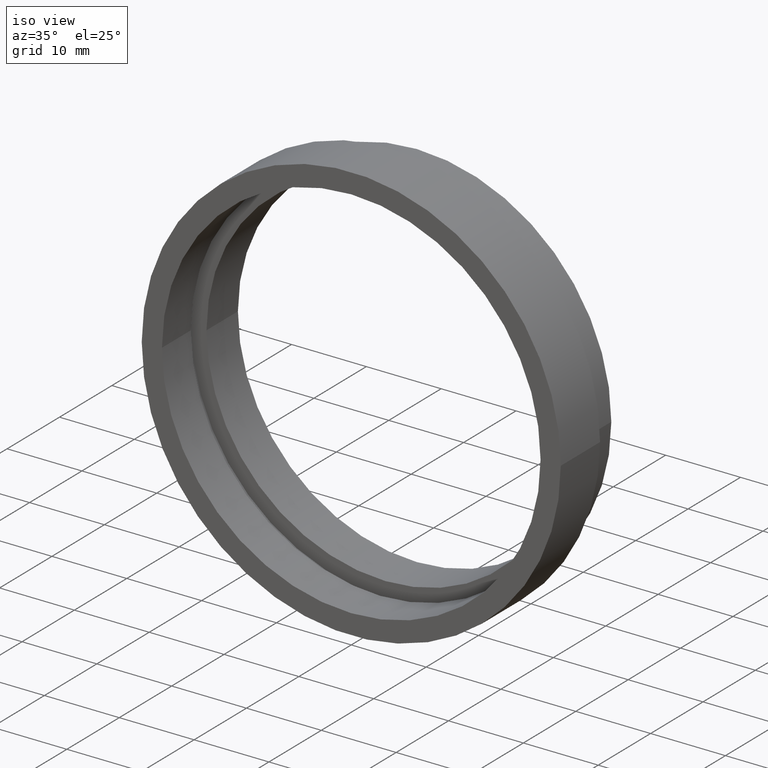
[diagram: clean part render]
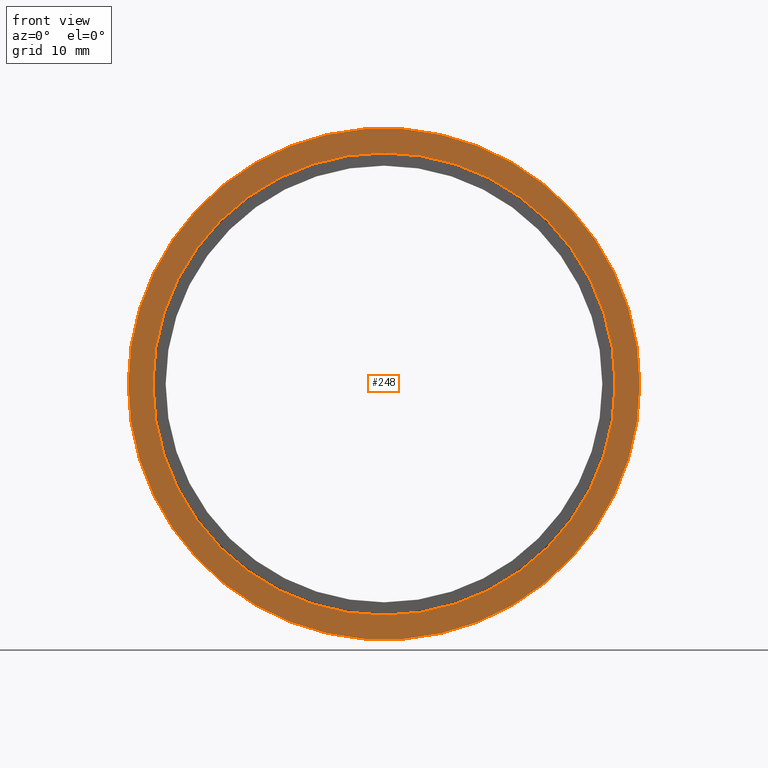
[diagram: tour spotlight — one face highlighted and labeled with its STEP entity id]
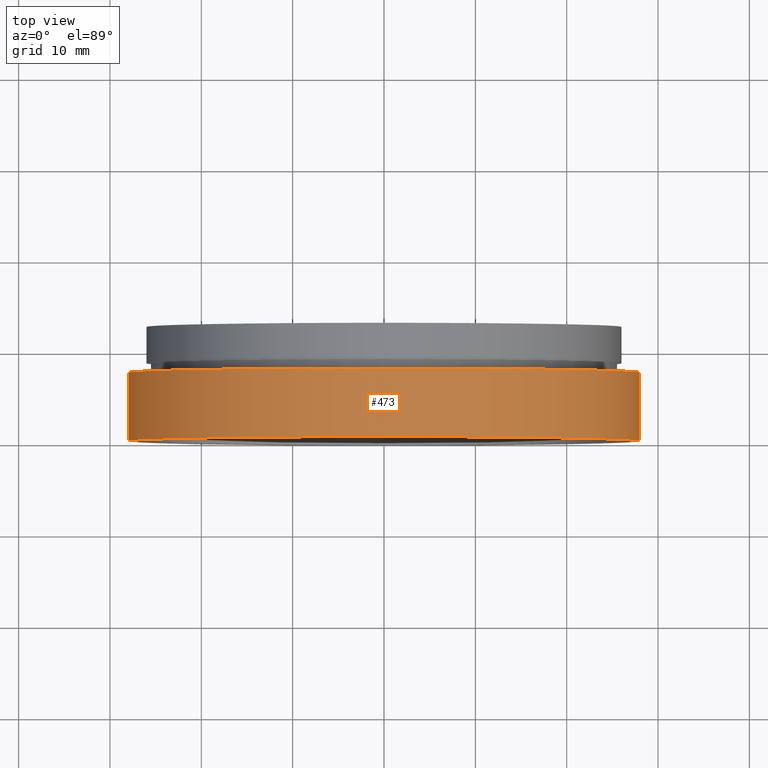
[diagram: tour spotlight — one face highlighted and labeled with its STEP entity id]
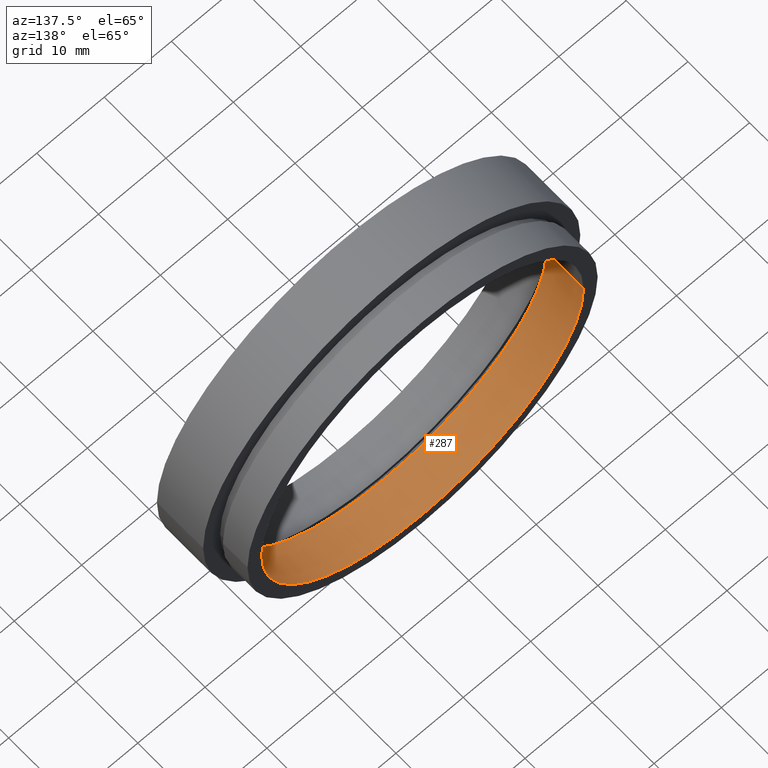
[diagram: tour spotlight — one face highlighted and labeled with its STEP entity id]
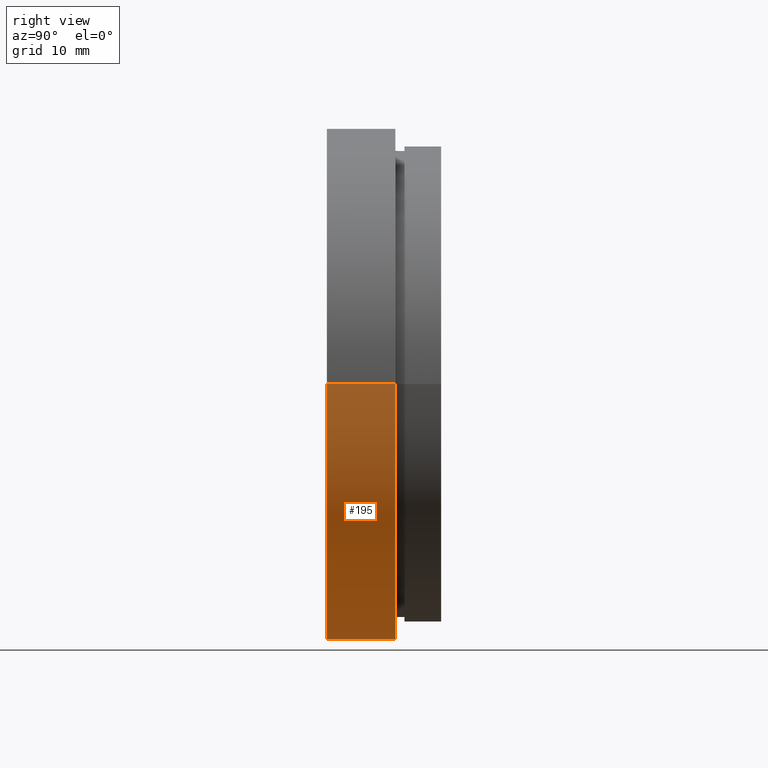
[diagram: tour spotlight — one face highlighted and labeled with its STEP entity id]
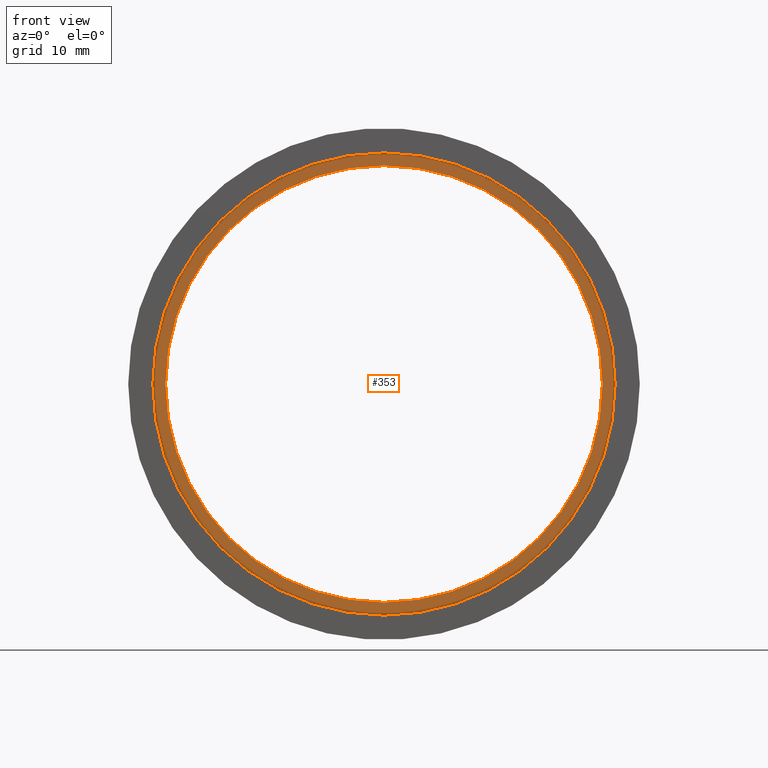
[diagram: tour spotlight — one face highlighted and labeled with its STEP entity id]
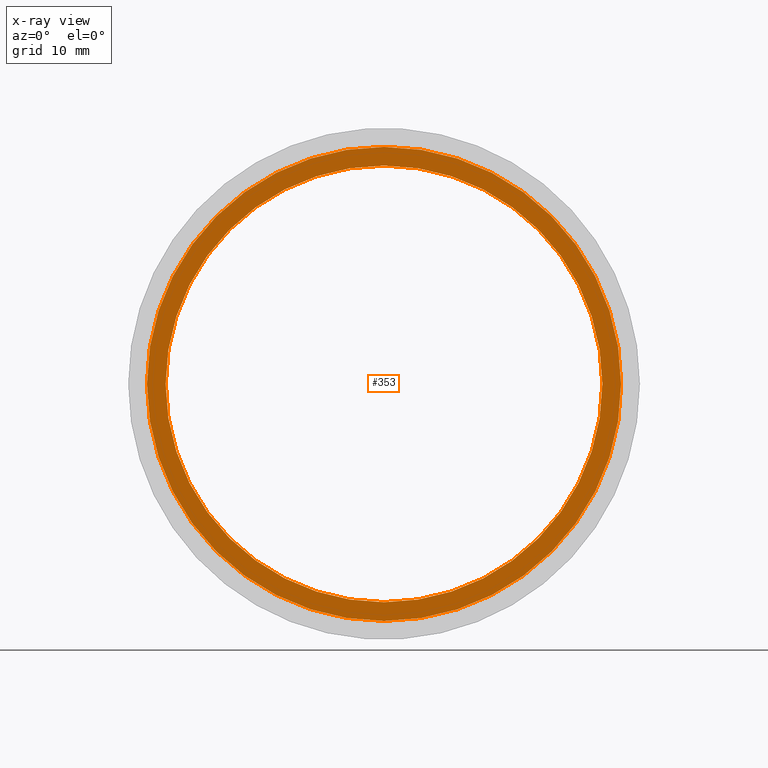
[diagram: x-ray of the same camera — body ghosted, this tour face saturated]
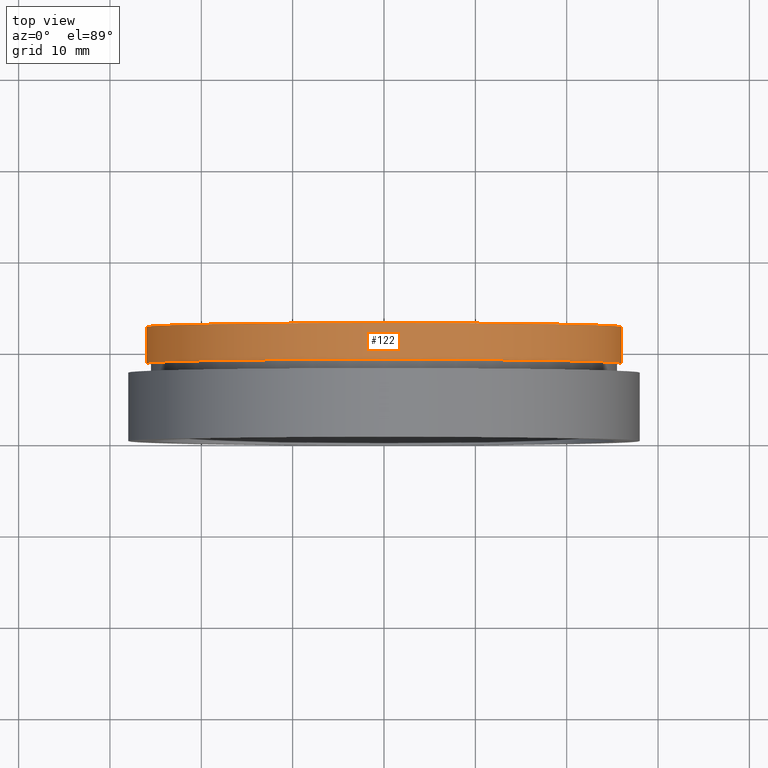
[diagram: tour spotlight — one face highlighted and labeled with its STEP entity id]
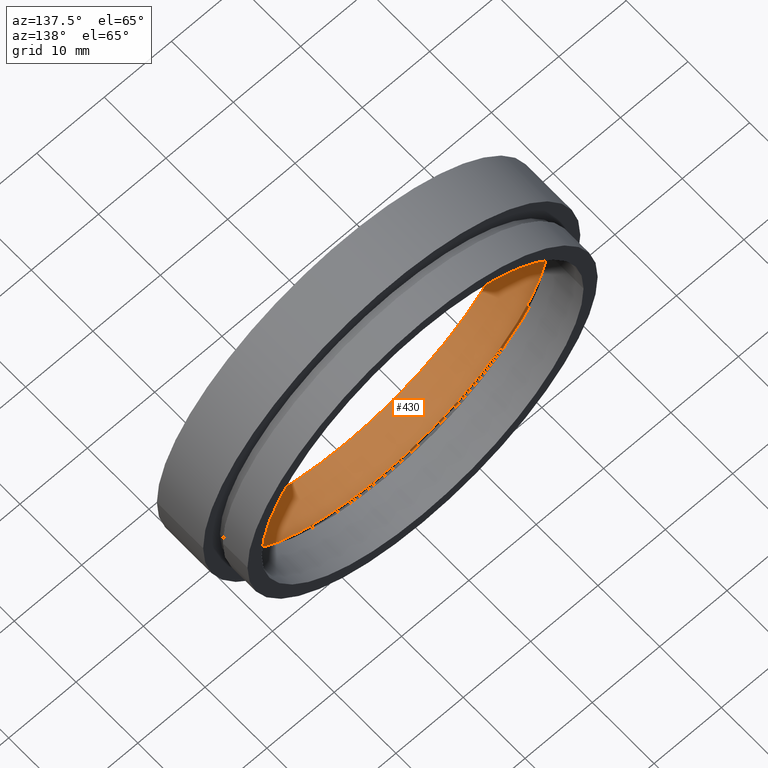
[diagram: tour spotlight — one face highlighted and labeled with its STEP entity id]
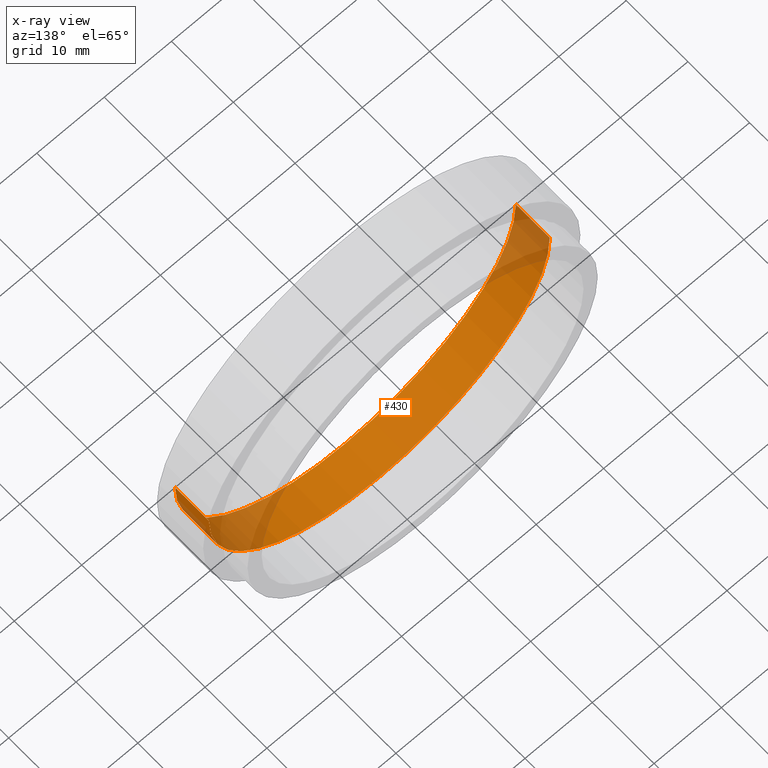
[diagram: x-ray of the same camera — body ghosted, this tour face saturated]
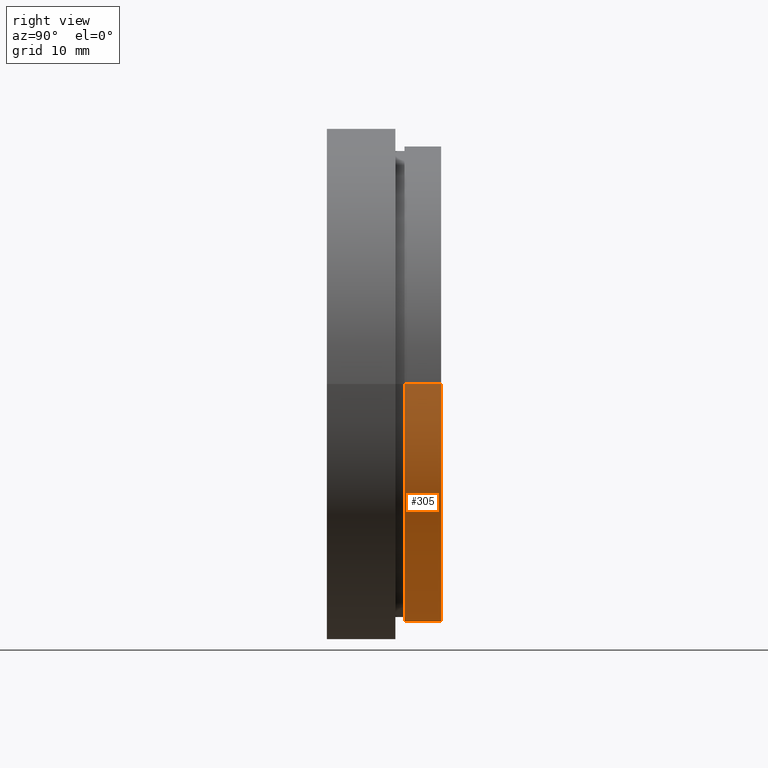
[diagram: tour spotlight — one face highlighted and labeled with its STEP entity id]
A machine part: a face-by-face anatomy tour. The part has 18 B-rep faces; the first image is the clean iso view, then the 8 largest visible faces are spotlighted one at a time (largest first), each with its STEP entity span.

Face 1 — front view, entity #248. In plain terms, the highlighted planar face has unit normal (-0, 1, 0).
Definition (entity closure, byte-faithful):
#2 = AXIS2_PLACEMENT_3D ( 'NONE', #334, #185, #242 ) ;
#3 = EDGE_CURVE ( 'NONE', #443, #500, #531, .T. ) ;
#20 = AXIS2_PLACEMENT_3D ( 'NONE', #60, #457, #411 ) ;
#60 = CARTESIAN_POINT ( 'NONE',  ( 2.067940818438636500E-015, -3.469446951953614200E-015, 0.0000000000000000000 ) ) ;
#81 = DIRECTION ( 'NONE',  ( -1.000000000000000000, -1.224646799147351000E-016, 0.0000000000000000000 ) ) ;
#98 = ORIENTED_EDGE ( 'NONE', *, *, #145, .F. ) ;
#103 = AXIS2_PLACEMENT_3D ( 'NONE', #616, #434, #81 ) ;
#118 = EDGE_LOOP ( 'NONE', ( #98, #247 ) ) ;
#145 = EDGE_CURVE ( 'NONE', #360, #372, #239, .T. ) ;
#149 = CARTESIAN_POINT ( 'NONE',  ( 25.30000000000000400, -3.710905501108162000E-016, 3.098356401842804300E-015 ) ) ;
#152 = FACE_BOUND ( 'NONE', #251, .T. ) ;
#162 = CIRCLE ( 'NONE', #2, 25.30000000000000100 ) ;
#170 = CARTESIAN_POINT ( 'NONE',  ( -25.29999999999999700, -6.567803353796412200E-015, 0.0000000000000000000 ) ) ;
#172 = DIRECTION ( 'NONE',  ( -1.224646799147351000E-016, 1.000000000000000000, -0.0000000000000000000 ) ) ;
#185 = DIRECTION ( 'NONE',  ( -1.224646799147351000E-016, 1.000000000000000000, -0.0000000000000000000 ) ) ;
#237 = PLANE ( 'NONE',  #103 ) ;
#239 = CIRCLE ( 'NONE', #428, 27.99999999999999600 ) ;
#242 = DIRECTION ( 'NONE',  ( -1.000000000000000000, -1.224646799147351000E-016, 0.0000000000000000000 ) ) ;
#247 = ORIENTED_EDGE ( 'NONE', *, *, #413, .F. ) ;
#248 = ADVANCED_FACE ( 'NONE', ( #298, #152 ), #237, .F. ) ;
#251 = EDGE_LOOP ( 'NONE', ( #266, #381 ) ) ;
#266 = ORIENTED_EDGE ( 'NONE', *, *, #302, .T. ) ;
#298 = FACE_OUTER_BOUND ( 'NONE', #118, .T. ) ;
#302 = EDGE_CURVE ( 'NONE', #500, #443, #162, .T. ) ;
#334 = CARTESIAN_POINT ( 'NONE',  ( 2.067940818438636500E-015, -3.469446951953614200E-015, 0.0000000000000000000 ) ) ;
#350 = AXIS2_PLACEMENT_3D ( 'NONE', #448, #541, #456 ) ;
#360 = VERTEX_POINT ( 'NONE', #586 ) ;
#372 = VERTEX_POINT ( 'NONE', #544 ) ;
#381 = ORIENTED_EDGE ( 'NONE', *, *, #3, .T. ) ;
#411 = DIRECTION ( 'NONE',  ( -1.000000000000000000, -1.224646799147351000E-016, 0.0000000000000000000 ) ) ;
#413 = EDGE_CURVE ( 'NONE', #372, #360, #490, .T. ) ;
#428 = AXIS2_PLACEMENT_3D ( 'NONE', #463, #172, #550 ) ;
#434 = DIRECTION ( 'NONE',  ( -1.224646799147351000E-016, 1.000000000000000000, 0.0000000000000000000 ) ) ;
#443 = VERTEX_POINT ( 'NONE', #149 ) ;
#448 = CARTESIAN_POINT ( 'NONE',  ( 2.067940818438636500E-015, -3.469446951953614200E-015, 0.0000000000000000000 ) ) ;
#456 = DIRECTION ( 'NONE',  ( -1.000000000000000000, -1.224646799147351200E-016, 0.0000000000000000000 ) ) ;
#457 = DIRECTION ( 'NONE',  ( -1.224646799147351000E-016, 1.000000000000000000, -0.0000000000000000000 ) ) ;
#463 = CARTESIAN_POINT ( 'NONE',  ( 2.067940818438636500E-015, -3.469446951953614200E-015, 0.0000000000000000000 ) ) ;
#490 = CIRCLE ( 'NONE', #350, 27.99999999999999600 ) ;
#500 = VERTEX_POINT ( 'NONE', #170 ) ;
#531 = CIRCLE ( 'NONE', #20, 25.30000000000000100 ) ;
#541 = DIRECTION ( 'NONE',  ( -1.224646799147351000E-016, 1.000000000000000000, -0.0000000000000000000 ) ) ;
#544 = CARTESIAN_POINT ( 'NONE',  ( 28.00000000000000400, -4.043591434103126100E-017, 3.429011037612589700E-015 ) ) ;
#550 = DIRECTION ( 'NONE',  ( -1.000000000000000000, -1.224646799147351200E-016, 0.0000000000000000000 ) ) ;
#586 = CARTESIAN_POINT ( 'NONE',  ( -27.99999999999999300, -6.898457989566196800E-015, 0.0000000000000000000 ) ) ;
#616 = CARTESIAN_POINT ( 'NONE',  ( 28.00000000000000000, -9.629649721936179300E-032, 0.0000000000000000000 ) ) ;

Face 2 — top view, entity #473. In plain terms, the highlighted cylindrical surface (partial cylindrical patch) has radius 28 mm, axis along (-0, 1, -0).
Definition (entity closure, byte-faithful):
#23 = EDGE_CURVE ( 'NONE', #128, #143, #88, .T. ) ;
#24 = DIRECTION ( 'NONE',  ( -1.000000000000000000, -1.239088197126290800E-016, 0.0000000000000000000 ) ) ;
#68 = CARTESIAN_POINT ( 'NONE',  ( 0.0000000000000000000, 16.88601823708207700, 0.0000000000000000000 ) ) ;
#82 = ORIENTED_EDGE ( 'NONE', *, *, #145, .T. ) ;
#88 = CIRCLE ( 'NONE', #614, 28.00000000000000000 ) ;
#92 = VECTOR ( 'NONE', #283, 1000.000000000000000 ) ;
#128 = VERTEX_POINT ( 'NONE', #166 ) ;
#132 = DIRECTION ( 'NONE',  ( -1.224646799147351000E-016, 1.000000000000000000, -0.0000000000000000000 ) ) ;
#134 = ORIENTED_EDGE ( 'NONE', *, *, #262, .F. ) ;
#143 = VERTEX_POINT ( 'NONE', #373 ) ;
#145 = EDGE_CURVE ( 'NONE', #360, #372, #239, .T. ) ;
#151 = DIRECTION ( 'NONE',  ( -1.224646799147351000E-016, 1.000000000000000000, -0.0000000000000000000 ) ) ;
#156 = DIRECTION ( 'NONE',  ( -1.224646799147351000E-016, 1.000000000000000000, -0.0000000000000000000 ) ) ;
#166 = CARTESIAN_POINT ( 'NONE',  ( -28.00000000000000000, 7.499999999999992900, 0.0000000000000000000 ) ) ;
#172 = DIRECTION ( 'NONE',  ( -1.224646799147351000E-016, 1.000000000000000000, -0.0000000000000000000 ) ) ;
#183 = EDGE_LOOP ( 'NONE', ( #82, #371, #345, #134 ) ) ;
#201 = EDGE_CURVE ( 'NONE', #372, #143, #414, .T. ) ;
#239 = CIRCLE ( 'NONE', #428, 27.99999999999999600 ) ;
#262 = EDGE_CURVE ( 'NONE', #360, #128, #605, .T. ) ;
#283 = DIRECTION ( 'NONE',  ( -1.224646799147351000E-016, 1.000000000000000000, -0.0000000000000000000 ) ) ;
#315 = CARTESIAN_POINT ( 'NONE',  ( 1.149455719078123100E-015, 7.499999999999996400, 0.0000000000000000000 ) ) ;
#329 = AXIS2_PLACEMENT_3D ( 'NONE', #68, #151, #24 ) ;
#342 = CARTESIAN_POINT ( 'NONE',  ( 27.99999999999999600, 16.88601823708208000, 3.429011037612588900E-015 ) ) ;
#345 = ORIENTED_EDGE ( 'NONE', *, *, #23, .F. ) ;
#360 = VERTEX_POINT ( 'NONE', #586 ) ;
#371 = ORIENTED_EDGE ( 'NONE', *, *, #201, .T. ) ;
#372 = VERTEX_POINT ( 'NONE', #544 ) ;
#373 = CARTESIAN_POINT ( 'NONE',  ( 28.00000000000000400, 7.500000000000000000, 3.429011037612589700E-015 ) ) ;
#403 = DIRECTION ( 'NONE',  ( -1.000000000000000000, -1.239088197126290800E-016, 0.0000000000000000000 ) ) ;
#414 = LINE ( 'NONE', #342, #446 ) ;
#421 = FACE_OUTER_BOUND ( 'NONE', #183, .T. ) ;
#428 = AXIS2_PLACEMENT_3D ( 'NONE', #463, #172, #550 ) ;
#446 = VECTOR ( 'NONE', #132, 1000.000000000000000 ) ;
#463 = CARTESIAN_POINT ( 'NONE',  ( 2.067940818438636500E-015, -3.469446951953614200E-015, 0.0000000000000000000 ) ) ;
#473 = ADVANCED_FACE ( 'NONE', ( #421 ), #571, .T. ) ;
#544 = CARTESIAN_POINT ( 'NONE',  ( 28.00000000000000400, -4.043591434103126100E-017, 3.429011037612589700E-015 ) ) ;
#550 = DIRECTION ( 'NONE',  ( -1.000000000000000000, -1.224646799147351200E-016, 0.0000000000000000000 ) ) ;
#560 = CARTESIAN_POINT ( 'NONE',  ( -27.99999999999999600, 16.88601823708207300, 0.0000000000000000000 ) ) ;
#571 = CYLINDRICAL_SURFACE ( 'NONE', #329, 27.99999999999999600 ) ;
#586 = CARTESIAN_POINT ( 'NONE',  ( -27.99999999999999300, -6.898457989566196800E-015, 0.0000000000000000000 ) ) ;
#605 = LINE ( 'NONE', #560, #92 ) ;
#614 = AXIS2_PLACEMENT_3D ( 'NONE', #315, #156, #403 ) ;

Face 3 — auxiliary view, entity #287. In plain terms, the highlighted cylindrical surface (partial cylindrical patch) has radius 23.9 mm, axis along (-0, 1, -0).
Definition (entity closure, byte-faithful):
#6 = VERTEX_POINT ( 'NONE', #528 ) ;
#12 = VERTEX_POINT ( 'NONE', #148 ) ;
#31 = CARTESIAN_POINT ( 'NONE',  ( 0.0000000000000000000, 16.88601823708207700, 0.0000000000000000000 ) ) ;
#38 = DIRECTION ( 'NONE',  ( -1.224646799147351000E-016, 1.000000000000000000, -0.0000000000000000000 ) ) ;
#85 = DIRECTION ( 'NONE',  ( -1.224646799147351000E-016, 1.000000000000000000, -0.0000000000000000000 ) ) ;
#90 = ORIENTED_EDGE ( 'NONE', *, *, #367, .T. ) ;
#99 = CARTESIAN_POINT ( 'NONE',  ( 23.89999999999999900, 12.50000000000000000, 2.926905849962173700E-015 ) ) ;
#113 = CIRCLE ( 'NONE', #599, 23.89999999999999900 ) ;
#116 = ORIENTED_EDGE ( 'NONE', *, *, #575, .T. ) ;
#144 = VERTEX_POINT ( 'NONE', #376 ) ;
#148 = CARTESIAN_POINT ( 'NONE',  ( -23.89999999999999900, 6.499999999999992900, 0.0000000000000000000 ) ) ;
#175 = VECTOR ( 'NONE', #38, 1000.000000000000000 ) ;
#180 = DIRECTION ( 'NONE',  ( -1.000000000000000000, -1.451651444332056200E-016, 0.0000000000000000000 ) ) ;
#196 = CYLINDRICAL_SURFACE ( 'NONE', #211, 23.89999999999999900 ) ;
#211 = AXIS2_PLACEMENT_3D ( 'NONE', #31, #85, #380 ) ;
#229 = LINE ( 'NONE', #364, #349 ) ;
#231 = CARTESIAN_POINT ( 'NONE',  ( -23.89999999999999900, 16.88601823708207300, 0.0000000000000000000 ) ) ;
#233 = CARTESIAN_POINT ( 'NONE',  ( 5.371323195044473300E-016, 12.49999999999999600, 0.0000000000000000000 ) ) ;
#236 = DIRECTION ( 'NONE',  ( -1.224646799147351000E-016, 1.000000000000000000, -0.0000000000000000000 ) ) ;
#243 = EDGE_CURVE ( 'NONE', #12, #6, #282, .T. ) ;
#257 = EDGE_LOOP ( 'NONE', ( #447, #90, #116, #425 ) ) ;
#282 = LINE ( 'NONE', #231, #175 ) ;
#287 = ADVANCED_FACE ( 'NONE', ( #545 ), #196, .F. ) ;
#311 = AXIS2_PLACEMENT_3D ( 'NONE', #233, #236, #180 ) ;
#349 = VECTOR ( 'NONE', #366, 1000.000000000000000 ) ;
#364 = CARTESIAN_POINT ( 'NONE',  ( 23.89999999999999900, 16.88601823708208000, 2.926905849962173700E-015 ) ) ;
#366 = DIRECTION ( 'NONE',  ( -1.224646799147351000E-016, 1.000000000000000000, -0.0000000000000000000 ) ) ;
#367 = EDGE_CURVE ( 'NONE', #144, #398, #229, .T. ) ;
#376 = CARTESIAN_POINT ( 'NONE',  ( 23.89999999999999900, 6.499999999999998200, 2.926905849962173700E-015 ) ) ;
#380 = DIRECTION ( 'NONE',  ( -1.000000000000000000, -1.451651444332056200E-016, 0.0000000000000000000 ) ) ;
#398 = VERTEX_POINT ( 'NONE', #99 ) ;
#425 = ORIENTED_EDGE ( 'NONE', *, *, #243, .F. ) ;
#447 = ORIENTED_EDGE ( 'NONE', *, *, #568, .F. ) ;
#508 = CIRCLE ( 'NONE', #311, 23.89999999999999900 ) ;
#512 = DIRECTION ( 'NONE',  ( -1.000000000000000000, -1.088738583249042200E-016, 0.0000000000000000000 ) ) ;
#513 = DIRECTION ( 'NONE',  ( -1.224646799147351000E-016, 1.000000000000000000, -0.0000000000000000000 ) ) ;
#528 = CARTESIAN_POINT ( 'NONE',  ( -23.89999999999999900, 12.49999999999999300, 0.0000000000000000000 ) ) ;
#545 = FACE_OUTER_BOUND ( 'NONE', #257, .T. ) ;
#568 = EDGE_CURVE ( 'NONE', #144, #12, #113, .T. ) ;
#575 = EDGE_CURVE ( 'NONE', #398, #6, #508, .T. ) ;
#599 = AXIS2_PLACEMENT_3D ( 'NONE', #606, #513, #512 ) ;
#606 = CARTESIAN_POINT ( 'NONE',  ( 1.271920398992858200E-015, 6.499999999999995600, 0.0000000000000000000 ) ) ;

Face 4 — right view, entity #195. In plain terms, the highlighted cylindrical surface (partial cylindrical patch) has radius 28 mm, axis along (-0, 1, -0).
Definition (entity closure, byte-faithful):
#36 = CARTESIAN_POINT ( 'NONE',  ( 1.149455719078123100E-015, 7.499999999999996400, 0.0000000000000000000 ) ) ;
#48 = AXIS2_PLACEMENT_3D ( 'NONE', #36, #281, #563 ) ;
#92 = VECTOR ( 'NONE', #283, 1000.000000000000000 ) ;
#128 = VERTEX_POINT ( 'NONE', #166 ) ;
#132 = DIRECTION ( 'NONE',  ( -1.224646799147351000E-016, 1.000000000000000000, -0.0000000000000000000 ) ) ;
#143 = VERTEX_POINT ( 'NONE', #373 ) ;
#163 = DIRECTION ( 'NONE',  ( -1.224646799147351000E-016, 1.000000000000000000, -0.0000000000000000000 ) ) ;
#166 = CARTESIAN_POINT ( 'NONE',  ( -28.00000000000000000, 7.499999999999992900, 0.0000000000000000000 ) ) ;
#195 = ADVANCED_FACE ( 'NONE', ( #407 ), #432, .T. ) ;
#201 = EDGE_CURVE ( 'NONE', #372, #143, #414, .T. ) ;
#250 = CIRCLE ( 'NONE', #48, 28.00000000000000000 ) ;
#262 = EDGE_CURVE ( 'NONE', #360, #128, #605, .T. ) ;
#274 = EDGE_LOOP ( 'NONE', ( #365, #595, #480, #526 ) ) ;
#281 = DIRECTION ( 'NONE',  ( -1.224646799147351000E-016, 1.000000000000000000, -0.0000000000000000000 ) ) ;
#283 = DIRECTION ( 'NONE',  ( -1.224646799147351000E-016, 1.000000000000000000, -0.0000000000000000000 ) ) ;
#342 = CARTESIAN_POINT ( 'NONE',  ( 27.99999999999999600, 16.88601823708208000, 3.429011037612588900E-015 ) ) ;
#350 = AXIS2_PLACEMENT_3D ( 'NONE', #448, #541, #456 ) ;
#360 = VERTEX_POINT ( 'NONE', #586 ) ;
#365 = ORIENTED_EDGE ( 'NONE', *, *, #201, .F. ) ;
#368 = DIRECTION ( 'NONE',  ( -1.000000000000000000, -1.239088197126290800E-016, 0.0000000000000000000 ) ) ;
#372 = VERTEX_POINT ( 'NONE', #544 ) ;
#373 = CARTESIAN_POINT ( 'NONE',  ( 28.00000000000000400, 7.500000000000000000, 3.429011037612589700E-015 ) ) ;
#407 = FACE_OUTER_BOUND ( 'NONE', #274, .T. ) ;
#413 = EDGE_CURVE ( 'NONE', #372, #360, #490, .T. ) ;
#414 = LINE ( 'NONE', #342, #446 ) ;
#432 = CYLINDRICAL_SURFACE ( 'NONE', #621, 27.99999999999999600 ) ;
#446 = VECTOR ( 'NONE', #132, 1000.000000000000000 ) ;
#448 = CARTESIAN_POINT ( 'NONE',  ( 2.067940818438636500E-015, -3.469446951953614200E-015, 0.0000000000000000000 ) ) ;
#456 = DIRECTION ( 'NONE',  ( -1.000000000000000000, -1.224646799147351200E-016, 0.0000000000000000000 ) ) ;
#480 = ORIENTED_EDGE ( 'NONE', *, *, #262, .T. ) ;
#490 = CIRCLE ( 'NONE', #350, 27.99999999999999600 ) ;
#526 = ORIENTED_EDGE ( 'NONE', *, *, #598, .F. ) ;
#541 = DIRECTION ( 'NONE',  ( -1.224646799147351000E-016, 1.000000000000000000, -0.0000000000000000000 ) ) ;
#544 = CARTESIAN_POINT ( 'NONE',  ( 28.00000000000000400, -4.043591434103126100E-017, 3.429011037612589700E-015 ) ) ;
#560 = CARTESIAN_POINT ( 'NONE',  ( -27.99999999999999600, 16.88601823708207300, 0.0000000000000000000 ) ) ;
#563 = DIRECTION ( 'NONE',  ( -1.000000000000000000, -1.239088197126290800E-016, 0.0000000000000000000 ) ) ;
#586 = CARTESIAN_POINT ( 'NONE',  ( -27.99999999999999300, -6.898457989566196800E-015, 0.0000000000000000000 ) ) ;
#595 = ORIENTED_EDGE ( 'NONE', *, *, #413, .T. ) ;
#598 = EDGE_CURVE ( 'NONE', #143, #128, #250, .T. ) ;
#602 = CARTESIAN_POINT ( 'NONE',  ( 0.0000000000000000000, 16.88601823708207700, 0.0000000000000000000 ) ) ;
#605 = LINE ( 'NONE', #560, #92 ) ;
#621 = AXIS2_PLACEMENT_3D ( 'NONE', #602, #163, #368 ) ;

Face 5 — front view, entity #353. An x-ray twin of the same camera follows (body ghosted, this face saturated) — the face is partly hidden behind the body. In plain terms, the highlighted planar face has unit normal (-0, 1, 0).
Definition (entity closure, byte-faithful):
#12 = VERTEX_POINT ( 'NONE', #148 ) ;
#22 = AXIS2_PLACEMENT_3D ( 'NONE', #340, #510, #41 ) ;
#41 = DIRECTION ( 'NONE',  ( -1.000000000000000000, -1.336973777246094200E-016, 0.0000000000000000000 ) ) ;
#42 = AXIS2_PLACEMENT_3D ( 'NONE', #275, #332, #182 ) ;
#56 = AXIS2_PLACEMENT_3D ( 'NONE', #610, #436, #87 ) ;
#87 = DIRECTION ( 'NONE',  ( -1.000000000000000000, -1.088738583249042200E-016, 0.0000000000000000000 ) ) ;
#113 = CIRCLE ( 'NONE', #599, 23.89999999999999900 ) ;
#144 = VERTEX_POINT ( 'NONE', #376 ) ;
#148 = CARTESIAN_POINT ( 'NONE',  ( -23.89999999999999900, 6.499999999999992900, 0.0000000000000000000 ) ) ;
#154 = VERTEX_POINT ( 'NONE', #226 ) ;
#182 = DIRECTION ( 'NONE',  ( -1.000000000000000000, -1.336973777246094200E-016, 0.0000000000000000000 ) ) ;
#190 = EDGE_CURVE ( 'NONE', #154, #392, #573, .T. ) ;
#199 = EDGE_CURVE ( 'NONE', #12, #144, #442, .T. ) ;
#205 = EDGE_CURVE ( 'NONE', #392, #154, #523, .T. ) ;
#209 = CARTESIAN_POINT ( 'NONE',  ( 25.94999999999999900, 6.499999999999999100, 3.177958443787381900E-015 ) ) ;
#226 = CARTESIAN_POINT ( 'NONE',  ( -25.94999999999999900, 6.499999999999992000, 0.0000000000000000000 ) ) ;
#246 = AXIS2_PLACEMENT_3D ( 'NONE', #489, #581, #318 ) ;
#255 = FACE_BOUND ( 'NONE', #301, .T. ) ;
#258 = PLANE ( 'NONE',  #246 ) ;
#272 = FACE_OUTER_BOUND ( 'NONE', #416, .T. ) ;
#275 = CARTESIAN_POINT ( 'NONE',  ( 1.271920398992858200E-015, 6.499999999999995600, 0.0000000000000000000 ) ) ;
#301 = EDGE_LOOP ( 'NONE', ( #391, #543 ) ) ;
#318 = DIRECTION ( 'NONE',  ( -1.000000000000000000, -1.224646799147351000E-016, 0.0000000000000000000 ) ) ;
#332 = DIRECTION ( 'NONE',  ( -1.224646799147351000E-016, 1.000000000000000000, -0.0000000000000000000 ) ) ;
#340 = CARTESIAN_POINT ( 'NONE',  ( 1.271920398992858200E-015, 6.499999999999995600, 0.0000000000000000000 ) ) ;
#353 = ADVANCED_FACE ( 'NONE', ( #272, #255 ), #258, .F. ) ;
#376 = CARTESIAN_POINT ( 'NONE',  ( 23.89999999999999900, 6.499999999999998200, 2.926905849962173700E-015 ) ) ;
#391 = ORIENTED_EDGE ( 'NONE', *, *, #199, .T. ) ;
#392 = VERTEX_POINT ( 'NONE', #209 ) ;
#400 = ORIENTED_EDGE ( 'NONE', *, *, #205, .F. ) ;
#416 = EDGE_LOOP ( 'NONE', ( #619, #400 ) ) ;
#436 = DIRECTION ( 'NONE',  ( -1.224646799147351000E-016, 1.000000000000000000, -0.0000000000000000000 ) ) ;
#442 = CIRCLE ( 'NONE', #56, 23.89999999999999900 ) ;
#489 = CARTESIAN_POINT ( 'NONE',  ( 23.89999999999999900, 6.499999999999999100, 0.0000000000000000000 ) ) ;
#510 = DIRECTION ( 'NONE',  ( -1.224646799147351000E-016, 1.000000000000000000, -0.0000000000000000000 ) ) ;
#512 = DIRECTION ( 'NONE',  ( -1.000000000000000000, -1.088738583249042200E-016, 0.0000000000000000000 ) ) ;
#513 = DIRECTION ( 'NONE',  ( -1.224646799147351000E-016, 1.000000000000000000, -0.0000000000000000000 ) ) ;
#523 = CIRCLE ( 'NONE', #22, 25.94999999999999900 ) ;
#543 = ORIENTED_EDGE ( 'NONE', *, *, #568, .T. ) ;
#568 = EDGE_CURVE ( 'NONE', #144, #12, #113, .T. ) ;
#573 = CIRCLE ( 'NONE', #42, 25.94999999999999900 ) ;
#581 = DIRECTION ( 'NONE',  ( -1.224646799147351000E-016, 1.000000000000000000, 0.0000000000000000000 ) ) ;
#599 = AXIS2_PLACEMENT_3D ( 'NONE', #606, #513, #512 ) ;
#606 = CARTESIAN_POINT ( 'NONE',  ( 1.271920398992858200E-015, 6.499999999999995600, 0.0000000000000000000 ) ) ;
#610 = CARTESIAN_POINT ( 'NONE',  ( 1.271920398992858200E-015, 6.499999999999995600, 0.0000000000000000000 ) ) ;
#619 = ORIENTED_EDGE ( 'NONE', *, *, #190, .F. ) ;

Face 6 — top view, entity #122. In plain terms, the highlighted cylindrical surface (partial cylindrical patch) has radius 26 mm, axis along (-0, 1, -0).
Definition (entity closure, byte-faithful):
#19 = ORIENTED_EDGE ( 'NONE', *, *, #347, .F. ) ;
#25 = AXIS2_PLACEMENT_3D ( 'NONE', #514, #34, #280 ) ;
#26 = CIRCLE ( 'NONE', #25, 25.99999999999999600 ) ;
#34 = DIRECTION ( 'NONE',  ( -1.224646799147351000E-016, 1.000000000000000000, -0.0000000000000000000 ) ) ;
#79 = CARTESIAN_POINT ( 'NONE',  ( 5.371323195044477300E-016, 12.49999999999999500, 0.0000000000000000000 ) ) ;
#93 = FACE_OUTER_BOUND ( 'NONE', #488, .T. ) ;
#97 = ORIENTED_EDGE ( 'NONE', *, *, #299, .F. ) ;
#110 = DIRECTION ( 'NONE',  ( -1.224646799147351000E-016, 1.000000000000000000, -0.0000000000000000000 ) ) ;
#122 = ADVANCED_FACE ( 'NONE', ( #93 ), #245, .T. ) ;
#158 = VERTEX_POINT ( 'NONE', #269 ) ;
#179 = CARTESIAN_POINT ( 'NONE',  ( 25.99999999999999600, 8.500000000000001800, 3.184081677783117800E-015 ) ) ;
#208 = CARTESIAN_POINT ( 'NONE',  ( 0.0000000000000000000, 16.88601823708207700, 0.0000000000000000000 ) ) ;
#212 = LINE ( 'NONE', #461, #445 ) ;
#245 = CYLINDRICAL_SURFACE ( 'NONE', #470, 25.99999999999999600 ) ;
#256 = DIRECTION ( 'NONE',  ( -1.224646799147351000E-016, 1.000000000000000000, -0.0000000000000000000 ) ) ;
#269 = CARTESIAN_POINT ( 'NONE',  ( -25.99999999999999600, 8.499999999999994700, 0.0000000000000000000 ) ) ;
#270 = EDGE_CURVE ( 'NONE', #158, #296, #26, .T. ) ;
#280 = DIRECTION ( 'NONE',  ( -1.000000000000000000, -1.334402673828313300E-016, 0.0000000000000000000 ) ) ;
#291 = VECTOR ( 'NONE', #313, 1000.000000000000000 ) ;
#296 = VERTEX_POINT ( 'NONE', #179 ) ;
#299 = EDGE_CURVE ( 'NONE', #344, #579, #316, .T. ) ;
#313 = DIRECTION ( 'NONE',  ( -1.224646799147351000E-016, 1.000000000000000000, -0.0000000000000000000 ) ) ;
#316 = CIRCLE ( 'NONE', #516, 26.00000000000000000 ) ;
#333 = CARTESIAN_POINT ( 'NONE',  ( 26.00000000000000400, 12.49999999999999800, 3.184081677783118600E-015 ) ) ;
#344 = VERTEX_POINT ( 'NONE', #521 ) ;
#347 = EDGE_CURVE ( 'NONE', #158, #344, #422, .T. ) ;
#395 = CARTESIAN_POINT ( 'NONE',  ( -25.99999999999999600, 16.88601823708207300, 0.0000000000000000000 ) ) ;
#422 = LINE ( 'NONE', #395, #291 ) ;
#440 = ORIENTED_EDGE ( 'NONE', *, *, #484, .T. ) ;
#445 = VECTOR ( 'NONE', #110, 1000.000000000000000 ) ;
#460 = DIRECTION ( 'NONE',  ( -1.000000000000000000, -1.334402673828313300E-016, 0.0000000000000000000 ) ) ;
#461 = CARTESIAN_POINT ( 'NONE',  ( 25.99999999999999600, 16.88601823708208000, 3.184081677783117800E-015 ) ) ;
#470 = AXIS2_PLACEMENT_3D ( 'NONE', #208, #256, #460 ) ;
#475 = DIRECTION ( 'NONE',  ( -1.000000000000000000, -1.334402673828313100E-016, 0.0000000000000000000 ) ) ;
#484 = EDGE_CURVE ( 'NONE', #296, #579, #212, .T. ) ;
#488 = EDGE_LOOP ( 'NONE', ( #518, #440, #97, #19 ) ) ;
#514 = CARTESIAN_POINT ( 'NONE',  ( 1.026991039163387700E-015, 8.499999999999998200, 0.0000000000000000000 ) ) ;
#516 = AXIS2_PLACEMENT_3D ( 'NONE', #79, #564, #475 ) ;
#518 = ORIENTED_EDGE ( 'NONE', *, *, #270, .T. ) ;
#521 = CARTESIAN_POINT ( 'NONE',  ( -26.00000000000000000, 12.49999999999999300, 0.0000000000000000000 ) ) ;
#564 = DIRECTION ( 'NONE',  ( -1.224646799147351000E-016, 1.000000000000000000, -0.0000000000000000000 ) ) ;
#579 = VERTEX_POINT ( 'NONE', #333 ) ;

Face 7 — auxiliary view, entity #430. An x-ray twin of the same camera follows (body ghosted, this face saturated) — the face is partly hidden behind the body. In plain terms, the highlighted cylindrical surface (partial cylindrical patch) has radius 25.3 mm, axis along (-0, 1, -0).
Definition (entity closure, byte-faithful):
#3 = EDGE_CURVE ( 'NONE', #443, #500, #531, .T. ) ;
#20 = AXIS2_PLACEMENT_3D ( 'NONE', #60, #457, #411 ) ;
#44 = DIRECTION ( 'NONE',  ( -1.224646799147351000E-016, 1.000000000000000000, -0.0000000000000000000 ) ) ;
#60 = CARTESIAN_POINT ( 'NONE',  ( 2.067940818438636500E-015, -3.469446951953614200E-015, 0.0000000000000000000 ) ) ;
#63 = CARTESIAN_POINT ( 'NONE',  ( 0.0000000000000000000, 16.88601823708207700, 0.0000000000000000000 ) ) ;
#73 = CIRCLE ( 'NONE', #482, 25.30000000000000400 ) ;
#102 = LINE ( 'NONE', #561, #142 ) ;
#125 = VECTOR ( 'NONE', #164, 1000.000000000000000 ) ;
#126 = FACE_OUTER_BOUND ( 'NONE', #483, .T. ) ;
#127 = DIRECTION ( 'NONE',  ( -1.000000000000000000, -1.371322905910519200E-016, 0.0000000000000000000 ) ) ;
#138 = ORIENTED_EDGE ( 'NONE', *, *, #534, .T. ) ;
#142 = VECTOR ( 'NONE', #44, 1000.000000000000000 ) ;
#149 = CARTESIAN_POINT ( 'NONE',  ( 25.30000000000000400, -3.710905501108162000E-016, 3.098356401842804300E-015 ) ) ;
#160 = DIRECTION ( 'NONE',  ( -1.224646799147351000E-016, 1.000000000000000000, -0.0000000000000000000 ) ) ;
#164 = DIRECTION ( 'NONE',  ( -1.224646799147351000E-016, 1.000000000000000000, -0.0000000000000000000 ) ) ;
#170 = CARTESIAN_POINT ( 'NONE',  ( -25.29999999999999700, -6.567803353796412200E-015, 0.0000000000000000000 ) ) ;
#193 = ORIENTED_EDGE ( 'NONE', *, *, #261, .T. ) ;
#200 = AXIS2_PLACEMENT_3D ( 'NONE', #63, #160, #253 ) ;
#253 = DIRECTION ( 'NONE',  ( -1.000000000000000000, -1.371322905910519200E-016, 0.0000000000000000000 ) ) ;
#261 = EDGE_CURVE ( 'NONE', #443, #597, #102, .T. ) ;
#278 = CARTESIAN_POINT ( 'NONE',  ( 25.30000000000000400, 5.499999999999998200, 3.098356401842804300E-015 ) ) ;
#348 = CYLINDRICAL_SURFACE ( 'NONE', #200, 25.30000000000000400 ) ;
#374 = CARTESIAN_POINT ( 'NONE',  ( -25.30000000000000400, 5.499999999999991100, 0.0000000000000000000 ) ) ;
#411 = DIRECTION ( 'NONE',  ( -1.000000000000000000, -1.224646799147351000E-016, 0.0000000000000000000 ) ) ;
#412 = ORIENTED_EDGE ( 'NONE', *, *, #502, .F. ) ;
#430 = ADVANCED_FACE ( 'NONE', ( #126 ), #348, .F. ) ;
#443 = VERTEX_POINT ( 'NONE', #149 ) ;
#457 = DIRECTION ( 'NONE',  ( -1.224646799147351000E-016, 1.000000000000000000, -0.0000000000000000000 ) ) ;
#478 = VERTEX_POINT ( 'NONE', #374 ) ;
#482 = AXIS2_PLACEMENT_3D ( 'NONE', #618, #615, #127 ) ;
#483 = EDGE_LOOP ( 'NONE', ( #624, #193, #138, #412 ) ) ;
#500 = VERTEX_POINT ( 'NONE', #170 ) ;
#502 = EDGE_CURVE ( 'NONE', #500, #478, #577, .T. ) ;
#531 = CIRCLE ( 'NONE', #20, 25.30000000000000100 ) ;
#534 = EDGE_CURVE ( 'NONE', #597, #478, #73, .T. ) ;
#561 = CARTESIAN_POINT ( 'NONE',  ( 25.30000000000000400, 16.88601823708208000, 3.098356401842804300E-015 ) ) ;
#577 = LINE ( 'NONE', #592, #125 ) ;
#592 = CARTESIAN_POINT ( 'NONE',  ( -25.30000000000000400, 16.88601823708207300, 0.0000000000000000000 ) ) ;
#597 = VERTEX_POINT ( 'NONE', #278 ) ;
#615 = DIRECTION ( 'NONE',  ( -1.224646799147351000E-016, 1.000000000000000000, -0.0000000000000000000 ) ) ;
#618 = CARTESIAN_POINT ( 'NONE',  ( 1.394385078907593400E-015, 5.499999999999994700, 0.0000000000000000000 ) ) ;
#624 = ORIENTED_EDGE ( 'NONE', *, *, #3, .F. ) ;

Face 8 — right view, entity #305. In plain terms, the highlighted cylindrical surface (partial cylindrical patch) has radius 26 mm, axis along (-0, 1, -0).
Definition (entity closure, byte-faithful):
#9 = FACE_OUTER_BOUND ( 'NONE', #310, .T. ) ;
#13 = DIRECTION ( 'NONE',  ( -1.000000000000000000, -1.334402673828313300E-016, 0.0000000000000000000 ) ) ;
#35 = ORIENTED_EDGE ( 'NONE', *, *, #100, .T. ) ;
#59 = ORIENTED_EDGE ( 'NONE', *, *, #484, .F. ) ;
#70 = DIRECTION ( 'NONE',  ( -1.224646799147351000E-016, 1.000000000000000000, -0.0000000000000000000 ) ) ;
#100 = EDGE_CURVE ( 'NONE', #296, #158, #594, .T. ) ;
#110 = DIRECTION ( 'NONE',  ( -1.224646799147351000E-016, 1.000000000000000000, -0.0000000000000000000 ) ) ;
#123 = CARTESIAN_POINT ( 'NONE',  ( 5.371323195044477300E-016, 12.49999999999999500, 0.0000000000000000000 ) ) ;
#150 = CIRCLE ( 'NONE', #254, 26.00000000000000000 ) ;
#158 = VERTEX_POINT ( 'NONE', #269 ) ;
#179 = CARTESIAN_POINT ( 'NONE',  ( 25.99999999999999600, 8.500000000000001800, 3.184081677783117800E-015 ) ) ;
#206 = CARTESIAN_POINT ( 'NONE',  ( 1.026991039163387700E-015, 8.499999999999998200, 0.0000000000000000000 ) ) ;
#212 = LINE ( 'NONE', #461, #445 ) ;
#234 = AXIS2_PLACEMENT_3D ( 'NONE', #468, #566, #522 ) ;
#254 = AXIS2_PLACEMENT_3D ( 'NONE', #123, #70, #467 ) ;
#269 = CARTESIAN_POINT ( 'NONE',  ( -25.99999999999999600, 8.499999999999994700, 0.0000000000000000000 ) ) ;
#291 = VECTOR ( 'NONE', #313, 1000.000000000000000 ) ;
#296 = VERTEX_POINT ( 'NONE', #179 ) ;
#305 = ADVANCED_FACE ( 'NONE', ( #9 ), #439, .T. ) ;
#310 = EDGE_LOOP ( 'NONE', ( #59, #35, #487, #359 ) ) ;
#312 = DIRECTION ( 'NONE',  ( -1.224646799147351000E-016, 1.000000000000000000, -0.0000000000000000000 ) ) ;
#313 = DIRECTION ( 'NONE',  ( -1.224646799147351000E-016, 1.000000000000000000, -0.0000000000000000000 ) ) ;
#324 = AXIS2_PLACEMENT_3D ( 'NONE', #206, #312, #13 ) ;
#333 = CARTESIAN_POINT ( 'NONE',  ( 26.00000000000000400, 12.49999999999999800, 3.184081677783118600E-015 ) ) ;
#344 = VERTEX_POINT ( 'NONE', #521 ) ;
#347 = EDGE_CURVE ( 'NONE', #158, #344, #422, .T. ) ;
#359 = ORIENTED_EDGE ( 'NONE', *, *, #520, .F. ) ;
#395 = CARTESIAN_POINT ( 'NONE',  ( -25.99999999999999600, 16.88601823708207300, 0.0000000000000000000 ) ) ;
#422 = LINE ( 'NONE', #395, #291 ) ;
#439 = CYLINDRICAL_SURFACE ( 'NONE', #234, 25.99999999999999600 ) ;
#445 = VECTOR ( 'NONE', #110, 1000.000000000000000 ) ;
#461 = CARTESIAN_POINT ( 'NONE',  ( 25.99999999999999600, 16.88601823708208000, 3.184081677783117800E-015 ) ) ;
#467 = DIRECTION ( 'NONE',  ( -1.000000000000000000, -1.334402673828313100E-016, 0.0000000000000000000 ) ) ;
#468 = CARTESIAN_POINT ( 'NONE',  ( 0.0000000000000000000, 16.88601823708207700, 0.0000000000000000000 ) ) ;
#484 = EDGE_CURVE ( 'NONE', #296, #579, #212, .T. ) ;
#487 = ORIENTED_EDGE ( 'NONE', *, *, #347, .T. ) ;
#520 = EDGE_CURVE ( 'NONE', #579, #344, #150, .T. ) ;
#521 = CARTESIAN_POINT ( 'NONE',  ( -26.00000000000000000, 12.49999999999999300, 0.0000000000000000000 ) ) ;
#522 = DIRECTION ( 'NONE',  ( -1.000000000000000000, -1.334402673828313300E-016, 0.0000000000000000000 ) ) ;
#566 = DIRECTION ( 'NONE',  ( -1.224646799147351000E-016, 1.000000000000000000, -0.0000000000000000000 ) ) ;
#579 = VERTEX_POINT ( 'NONE', #333 ) ;
#594 = CIRCLE ( 'NONE', #324, 25.99999999999999600 ) ;